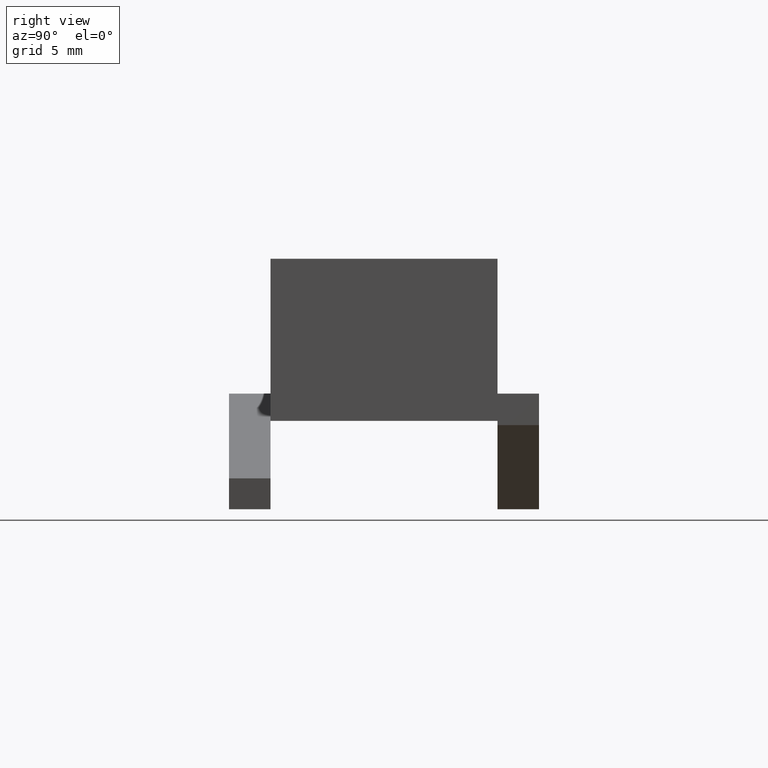
[diagram: clean part render]
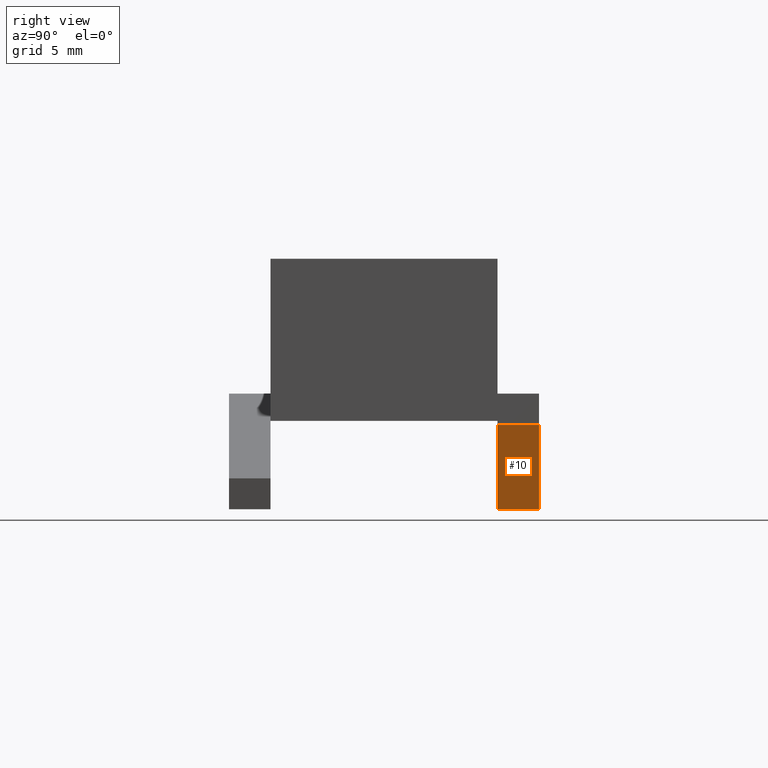
[diagram: same view with one face highlighted and labeled with its STEP entity id]
A machine part, right view. The second image highlights one B-rep face of the part: STEP entity #10.
In plain terms, the highlighted planar face has unit normal (-0.1441, 0, 0.9896).
Its self-contained STEP definition (entity closure, byte-faithful):
#10 = ADVANCED_FACE ( 'NONE', ( #831 ), #317, .F. ) ;
#107 = ORIENTED_EDGE ( 'NONE', *, *, #688, .T. ) ;
#109 = ORIENTED_EDGE ( 'NONE', *, *, #699, .F. ) ;
#110 = ORIENTED_EDGE ( 'NONE', *, *, #649, .F. ) ;
#111 = ORIENTED_EDGE ( 'NONE', *, *, #681, .T. ) ;
#209 = EDGE_LOOP ( 'NONE', ( #107, #109, #110, #111 ) ) ;
#262 = VERTEX_POINT ( 'NONE', #390 ) ;
#266 = VERTEX_POINT ( 'NONE', #394 ) ;
#287 = VERTEX_POINT ( 'NONE', #415 ) ;
#288 = VERTEX_POINT ( 'NONE', #416 ) ;
#315 = CARTESIAN_POINT ( 'NONE',  ( -0.5826018371384010800, 0.2987500000000000200, -0.4828734728571544800 ) ) ;
#317 = PLANE ( 'NONE',  #718 ) ;
#320 = DIRECTION ( 'NONE',  ( -0.1441360476933148700, 0.0000000000000000000, 0.9895578809525750200 ) ) ;
#321 = DIRECTION ( 'NONE',  ( 0.9895578809525749100, 0.0000000000000000000, 0.1441360476933148400 ) ) ;
#390 = CARTESIAN_POINT ( 'NONE',  ( 0.5312500000000000000, 0.2987500000000000200, -0.3206331384499130900 ) ) ;
#394 = CARTESIAN_POINT ( 'NONE',  ( 0.5312500000000000000, 0.2187500000000000300, -0.3206331384499130900 ) ) ;
#415 = CARTESIAN_POINT ( 'NONE',  ( -0.5826018371384010800, 0.2187500000000000300, -0.4828734728571544800 ) ) ;
#416 = CARTESIAN_POINT ( 'NONE',  ( -0.5826018371384010800, 0.2987500000000000200, -0.4828734728571544800 ) ) ;
#420 = CARTESIAN_POINT ( 'NONE',  ( -0.5826018371384010800, 0.2987500000000000200, -0.4828734728571544800 ) ) ;
#422 = DIRECTION ( 'NONE',  ( -0.9895578809525749100, -0.0000000000000000000, -0.1441360476933148400 ) ) ;
#485 = CARTESIAN_POINT ( 'NONE',  ( 0.5312500000000000000, 0.2987500000000000200, -0.3206331384499130900 ) ) ;
#486 = DIRECTION ( 'NONE',  ( -0.0000000000000000000, -1.000000000000000000, -0.0000000000000000000 ) ) ;
#500 = CARTESIAN_POINT ( 'NONE',  ( -0.5826018371384010800, 0.2187500000000000300, -0.4828734728571544800 ) ) ;
#501 = DIRECTION ( 'NONE',  ( -0.9895578809525749100, -0.0000000000000000000, -0.1441360476933148400 ) ) ;
#524 = CARTESIAN_POINT ( 'NONE',  ( -0.5826018371384010800, 0.2987500000000000200, -0.4828734728571544800 ) ) ;
#525 = DIRECTION ( 'NONE',  ( -0.0000000000000000000, -1.000000000000000000, -0.0000000000000000000 ) ) ;
#618 = LINE ( 'NONE', #524, #627 ) ;
#627 = VECTOR ( 'NONE', #525, 39.37007874015748100 ) ;
#649 = EDGE_CURVE ( 'NONE', #262, #288, #813, .T. ) ;
#681 = EDGE_CURVE ( 'NONE', #262, #266, #790, .T. ) ;
#688 = EDGE_CURVE ( 'NONE', #266, #287, #804, .T. ) ;
#699 = EDGE_CURVE ( 'NONE', #288, #287, #618, .T. ) ;
#718 = AXIS2_PLACEMENT_3D ( 'NONE', #315, #320, #321 ) ;
#790 = LINE ( 'NONE', #485, #791 ) ;
#791 = VECTOR ( 'NONE', #486, 39.37007874015748100 ) ;
#804 = LINE ( 'NONE', #500, #805 ) ;
#805 = VECTOR ( 'NONE', #501, 39.37007874015748100 ) ;
#812 = VECTOR ( 'NONE', #422, 39.37007874015748100 ) ;
#813 = LINE ( 'NONE', #420, #812 ) ;
#831 = FACE_OUTER_BOUND ( 'NONE', #209, .T. ) ;